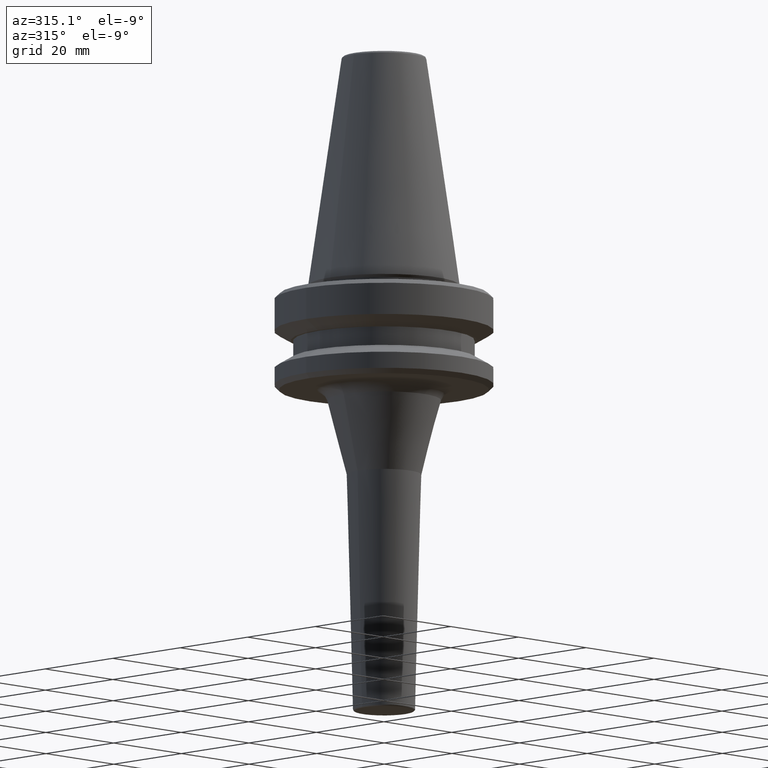
[diagram: clean part render]
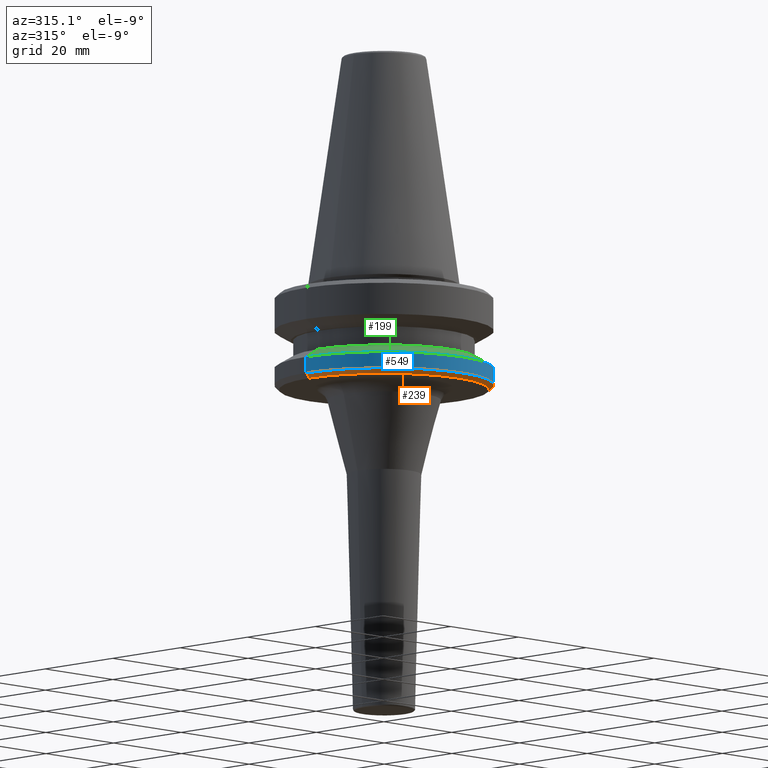
[diagram: same view with three faces highlighted in distinct colors, each labeled with its STEP entity id]
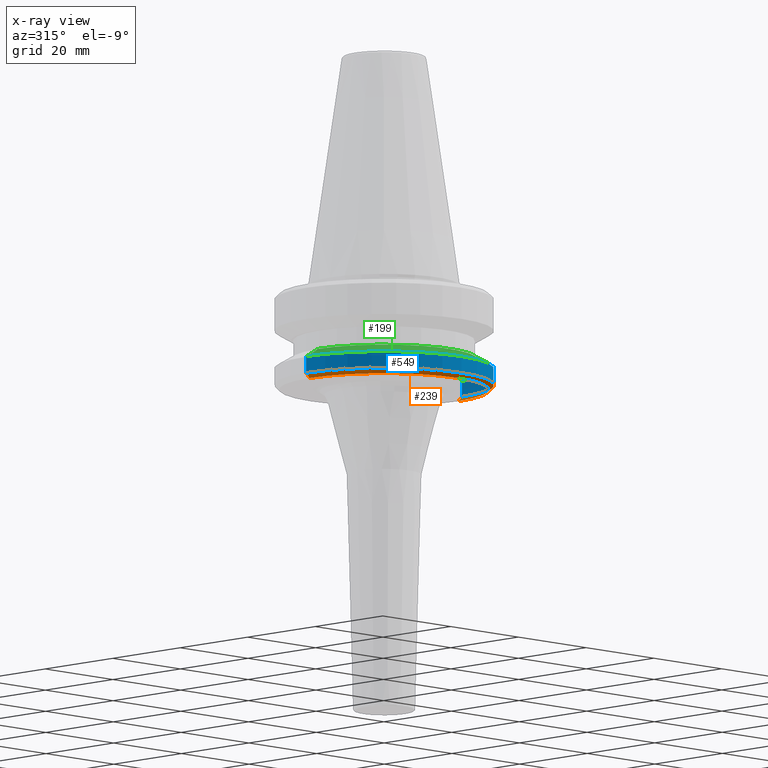
[diagram: x-ray of the same camera — body ghosted, the three highlighted faces saturated]
A machine part, auxiliary view with three faces highlighted in distinct colors.
The next image is the same camera in x-ray (body ghosted, the three faces saturated) — at least one of them is partly hidden behind the body in this view.
Their STEP definitions:

[orange] entity #239 — the highlighted conical surface has half-angle 45 deg.
#31 = CARTESIAN_POINT ( 'NONE',  ( 0.0000000000000000000, 0.0000000000000000000, -20.99999999999990800 ) ) ;
#45 = DIRECTION ( 'NONE',  ( 1.000000000000000000, 0.0000000000000000000, 0.0000000000000000000 ) ) ;
#98 = VERTEX_POINT ( 'NONE', #1019 ) ;
#163 = DIRECTION ( 'NONE',  ( 1.000000000000000000, 0.0000000000000000000, 0.0000000000000000000 ) ) ;
#186 = VERTEX_POINT ( 'NONE', #265 ) ;
#198 = ORIENTED_EDGE ( 'NONE', *, *, #922, .T. ) ;
#206 = CIRCLE ( 'NONE', #811, 22.00000000000013100 ) ;
#209 = EDGE_CURVE ( 'NONE', #654, #98, #206, .T. ) ;
#239 = ADVANCED_FACE ( 'NONE', ( #415 ), #946, .T. ) ;
#265 = CARTESIAN_POINT ( 'NONE',  ( 23.00000000000002100, 0.0000000000000000000, -20.99999999999990800 ) ) ;
#269 = LINE ( 'NONE', #827, #814 ) ;
#369 = DIRECTION ( 'NONE',  ( -0.0000000000000000000, -0.0000000000000000000, 1.000000000000000000 ) ) ;
#415 = FACE_OUTER_BOUND ( 'NONE', #1017, .T. ) ;
#443 = CARTESIAN_POINT ( 'NONE',  ( -23.00000000000002100, 2.816687638038915100E-015, -20.99999999999990800 ) ) ;
#459 = CARTESIAN_POINT ( 'NONE',  ( -22.00000000000013100, 2.755455298081553800E-015, -21.99999999999979700 ) ) ;
#505 = DIRECTION ( 'NONE',  ( -0.7071067811865474600, 8.659560562354931600E-017, 0.7071067811865475700 ) ) ;
#506 = EDGE_CURVE ( 'NONE', #654, #1013, #269, .T. ) ;
#572 = CARTESIAN_POINT ( 'NONE',  ( 0.0000000000000000000, 0.0000000000000000000, -21.99999999999979700 ) ) ;
#612 = ORIENTED_EDGE ( 'NONE', *, *, #209, .T. ) ;
#630 = CIRCLE ( 'NONE', #707, 23.00000000000002100 ) ;
#654 = VERTEX_POINT ( 'NONE', #459 ) ;
#664 = ORIENTED_EDGE ( 'NONE', *, *, #506, .F. ) ;
#670 = EDGE_CURVE ( 'NONE', #1013, #186, #630, .T. ) ;
#707 = AXIS2_PLACEMENT_3D ( 'NONE', #31, #369, #45 ) ;
#729 = CARTESIAN_POINT ( 'NONE',  ( 0.0000000000000000000, 0.0000000000000000000, -21.99999999999979700 ) ) ;
#781 = CARTESIAN_POINT ( 'NONE',  ( 22.00000000000013100, 0.0000000000000000000, -21.99999999999979700 ) ) ;
#785 = DIRECTION ( 'NONE',  ( -0.0000000000000000000, -0.0000000000000000000, 1.000000000000000000 ) ) ;
#808 = ORIENTED_EDGE ( 'NONE', *, *, #670, .F. ) ;
#811 = AXIS2_PLACEMENT_3D ( 'NONE', #572, #879, #1050 ) ;
#814 = VECTOR ( 'NONE', #505, 1000.000000000000000 ) ;
#827 = CARTESIAN_POINT ( 'NONE',  ( -22.00000000000013100, 2.694222958124193000E-015, -21.99999999999979700 ) ) ;
#859 = DIRECTION ( 'NONE',  ( 0.7071067811865474600, 0.0000000000000000000, 0.7071067811865475700 ) ) ;
#879 = DIRECTION ( 'NONE',  ( -0.0000000000000000000, -0.0000000000000000000, 1.000000000000000000 ) ) ;
#922 = EDGE_CURVE ( 'NONE', #98, #186, #1008, .T. ) ;
#946 = CONICAL_SURFACE ( 'NONE', #1035, 22.00000000000013100, 0.7853981633974482800 ) ;
#1008 = LINE ( 'NONE', #781, #1036 ) ;
#1013 = VERTEX_POINT ( 'NONE', #443 ) ;
#1017 = EDGE_LOOP ( 'NONE', ( #664, #612, #198, #808 ) ) ;
#1019 = CARTESIAN_POINT ( 'NONE',  ( 22.00000000000013100, 0.0000000000000000000, -21.99999999999979700 ) ) ;
#1035 = AXIS2_PLACEMENT_3D ( 'NONE', #729, #785, #163 ) ;
#1036 = VECTOR ( 'NONE', #859, 1000.000000000000000 ) ;
#1050 = DIRECTION ( 'NONE',  ( 1.000000000000000000, 0.0000000000000000000, 0.0000000000000000000 ) ) ;

[blue] entity #549 — the highlighted cylindrical surface (partial cylindrical patch) has radius 23 mm, axis along (-0, -0, 1).
#31 = CARTESIAN_POINT ( 'NONE',  ( 0.0000000000000000000, 0.0000000000000000000, -20.99999999999990800 ) ) ;
#45 = DIRECTION ( 'NONE',  ( 1.000000000000000000, 0.0000000000000000000, 0.0000000000000000000 ) ) ;
#66 = LINE ( 'NONE', #385, #501 ) ;
#124 = AXIS2_PLACEMENT_3D ( 'NONE', #189, #591, #342 ) ;
#147 = DIRECTION ( 'NONE',  ( -0.0000000000000000000, -0.0000000000000000000, 1.000000000000000000 ) ) ;
#186 = VERTEX_POINT ( 'NONE', #265 ) ;
#189 = CARTESIAN_POINT ( 'NONE',  ( 0.0000000000000000000, 0.0000000000000000000, 105.6755792788445500 ) ) ;
#243 = CIRCLE ( 'NONE', #486, 23.00000000000002100 ) ;
#265 = CARTESIAN_POINT ( 'NONE',  ( 23.00000000000002100, 0.0000000000000000000, -20.99999999999990800 ) ) ;
#280 = CARTESIAN_POINT ( 'NONE',  ( -23.00000000000002100, 2.816687638038915100E-015, -17.59988266494572100 ) ) ;
#297 = FACE_OUTER_BOUND ( 'NONE', #865, .T. ) ;
#298 = DIRECTION ( 'NONE',  ( 1.000000000000000000, 0.0000000000000000000, 0.0000000000000000000 ) ) ;
#314 = CARTESIAN_POINT ( 'NONE',  ( 23.00000000000002100, 0.0000000000000000000, -17.59988266494572100 ) ) ;
#342 = DIRECTION ( 'NONE',  ( 1.000000000000000000, 0.0000000000000000000, 0.0000000000000000000 ) ) ;
#369 = DIRECTION ( 'NONE',  ( -0.0000000000000000000, -0.0000000000000000000, 1.000000000000000000 ) ) ;
#385 = CARTESIAN_POINT ( 'NONE',  ( -23.00000000000002100, 2.816687638038915100E-015, 105.6755792788445500 ) ) ;
#443 = CARTESIAN_POINT ( 'NONE',  ( -23.00000000000002100, 2.816687638038915100E-015, -20.99999999999990800 ) ) ;
#472 = DIRECTION ( 'NONE',  ( -0.0000000000000000000, -0.0000000000000000000, 1.000000000000000000 ) ) ;
#486 = AXIS2_PLACEMENT_3D ( 'NONE', #843, #914, #298 ) ;
#501 = VECTOR ( 'NONE', #472, 1000.000000000000000 ) ;
#543 = VERTEX_POINT ( 'NONE', #280 ) ;
#549 = ADVANCED_FACE ( 'NONE', ( #297 ), #833, .T. ) ;
#551 = ORIENTED_EDGE ( 'NONE', *, *, #636, .F. ) ;
#584 = LINE ( 'NONE', #935, #743 ) ;
#591 = DIRECTION ( 'NONE',  ( -0.0000000000000000000, -0.0000000000000000000, 1.000000000000000000 ) ) ;
#593 = ORIENTED_EDGE ( 'NONE', *, *, #670, .T. ) ;
#626 = ORIENTED_EDGE ( 'NONE', *, *, #641, .T. ) ;
#630 = CIRCLE ( 'NONE', #707, 23.00000000000002100 ) ;
#636 = EDGE_CURVE ( 'NONE', #543, #947, #243, .T. ) ;
#641 = EDGE_CURVE ( 'NONE', #186, #947, #584, .T. ) ;
#670 = EDGE_CURVE ( 'NONE', #1013, #186, #630, .T. ) ;
#707 = AXIS2_PLACEMENT_3D ( 'NONE', #31, #369, #45 ) ;
#743 = VECTOR ( 'NONE', #147, 1000.000000000000000 ) ;
#829 = EDGE_CURVE ( 'NONE', #1013, #543, #66, .T. ) ;
#833 = CYLINDRICAL_SURFACE ( 'NONE', #124, 23.00000000000002100 ) ;
#843 = CARTESIAN_POINT ( 'NONE',  ( 0.0000000000000000000, 0.0000000000000000000, -17.59988266494572100 ) ) ;
#865 = EDGE_LOOP ( 'NONE', ( #987, #593, #626, #551 ) ) ;
#914 = DIRECTION ( 'NONE',  ( -0.0000000000000000000, -0.0000000000000000000, 1.000000000000000000 ) ) ;
#935 = CARTESIAN_POINT ( 'NONE',  ( 23.00000000000002100, 0.0000000000000000000, 105.6755792788445500 ) ) ;
#947 = VERTEX_POINT ( 'NONE', #314 ) ;
#987 = ORIENTED_EDGE ( 'NONE', *, *, #829, .F. ) ;
#1013 = VERTEX_POINT ( 'NONE', #443 ) ;

[green] entity #199 — the highlighted conical surface has half-angle 60 deg.
#3 = DIRECTION ( 'NONE',  ( 1.000000000000000000, 0.0000000000000000000, 0.0000000000000000000 ) ) ;
#24 = AXIS2_PLACEMENT_3D ( 'NONE', #717, #324, #3 ) ;
#34 = DIRECTION ( 'NONE',  ( 0.8660254037844388200, 1.060575238724907200E-016, -0.4999999999999997200 ) ) ;
#42 = ORIENTED_EDGE ( 'NONE', *, *, #245, .F. ) ;
#84 = CARTESIAN_POINT ( 'NONE',  ( -19.53610161513788400, 0.0000000000000000000, -15.60000000000005800 ) ) ;
#93 = EDGE_CURVE ( 'NONE', #805, #947, #792, .T. ) ;
#123 = CIRCLE ( 'NONE', #24, 19.53610161513788400 ) ;
#140 = FACE_OUTER_BOUND ( 'NONE', #756, .T. ) ;
#199 = ADVANCED_FACE ( 'NONE', ( #140 ), #575, .T. ) ;
#243 = CIRCLE ( 'NONE', #486, 23.00000000000002100 ) ;
#245 = EDGE_CURVE ( 'NONE', #452, #805, #123, .T. ) ;
#256 = DIRECTION ( 'NONE',  ( -1.000000000000000000, 0.0000000000000000000, 0.0000000000000000000 ) ) ;
#280 = CARTESIAN_POINT ( 'NONE',  ( -23.00000000000002100, 2.816687638038915100E-015, -17.59988266494572100 ) ) ;
#298 = DIRECTION ( 'NONE',  ( 1.000000000000000000, 0.0000000000000000000, 0.0000000000000000000 ) ) ;
#314 = CARTESIAN_POINT ( 'NONE',  ( 23.00000000000002100, 0.0000000000000000000, -17.59988266494572100 ) ) ;
#324 = DIRECTION ( 'NONE',  ( -0.0000000000000000000, -0.0000000000000000000, 1.000000000000000000 ) ) ;
#326 = VECTOR ( 'NONE', #920, 1000.000000000000000 ) ;
#411 = CARTESIAN_POINT ( 'NONE',  ( 0.0000000000000000000, 0.0000000000000000000, -17.59988266494572100 ) ) ;
#416 = AXIS2_PLACEMENT_3D ( 'NONE', #411, #871, #256 ) ;
#452 = VERTEX_POINT ( 'NONE', #84 ) ;
#466 = CARTESIAN_POINT ( 'NONE',  ( 19.53610161513788400, 2.604585034559260300E-015, -15.60000000000005800 ) ) ;
#486 = AXIS2_PLACEMENT_3D ( 'NONE', #843, #914, #298 ) ;
#543 = VERTEX_POINT ( 'NONE', #280 ) ;
#575 = CONICAL_SURFACE ( 'NONE', #416, 23.00000000000002100, 1.047197551196598100 ) ;
#636 = EDGE_CURVE ( 'NONE', #543, #947, #243, .T. ) ;
#645 = ORIENTED_EDGE ( 'NONE', *, *, #636, .T. ) ;
#685 = CARTESIAN_POINT ( 'NONE',  ( 23.00000000000002100, 2.816687638038915100E-015, -17.59988266494572100 ) ) ;
#717 = CARTESIAN_POINT ( 'NONE',  ( 0.0000000000000000000, 0.0000000000000000000, -15.60000000000005800 ) ) ;
#756 = EDGE_LOOP ( 'NONE', ( #802, #42, #777, #645 ) ) ;
#777 = ORIENTED_EDGE ( 'NONE', *, *, #1047, .T. ) ;
#792 = LINE ( 'NONE', #685, #1012 ) ;
#802 = ORIENTED_EDGE ( 'NONE', *, *, #93, .F. ) ;
#805 = VERTEX_POINT ( 'NONE', #466 ) ;
#832 = CARTESIAN_POINT ( 'NONE',  ( -23.00000000000002100, 0.0000000000000000000, -17.59988266494572100 ) ) ;
#843 = CARTESIAN_POINT ( 'NONE',  ( 0.0000000000000000000, 0.0000000000000000000, -17.59988266494572100 ) ) ;
#871 = DIRECTION ( 'NONE',  ( 0.0000000000000000000, 0.0000000000000000000, -1.000000000000000000 ) ) ;
#914 = DIRECTION ( 'NONE',  ( -0.0000000000000000000, -0.0000000000000000000, 1.000000000000000000 ) ) ;
#920 = DIRECTION ( 'NONE',  ( -0.8660254037844388200, 0.0000000000000000000, -0.4999999999999997200 ) ) ;
#947 = VERTEX_POINT ( 'NONE', #314 ) ;
#958 = LINE ( 'NONE', #832, #326 ) ;
#1012 = VECTOR ( 'NONE', #34, 1000.000000000000000 ) ;
#1047 = EDGE_CURVE ( 'NONE', #452, #543, #958, .T. ) ;